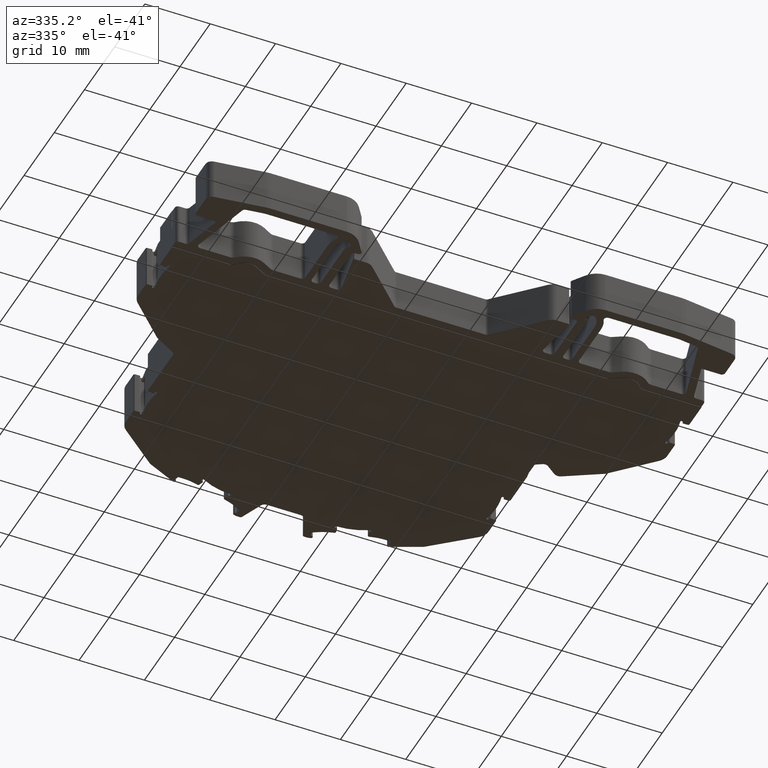
[diagram: clean part render]
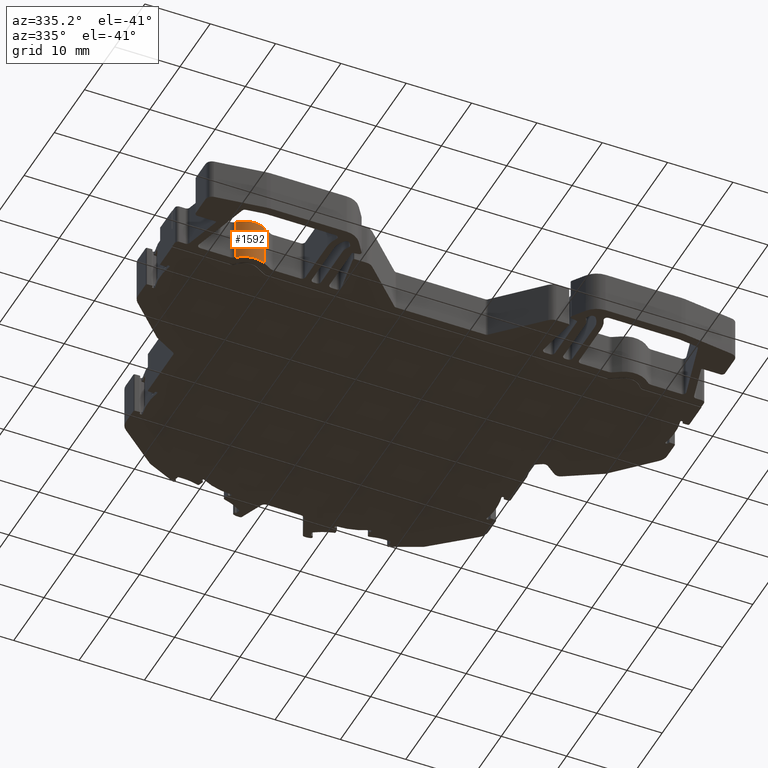
[diagram: same view with one face highlighted and labeled with its STEP entity id]
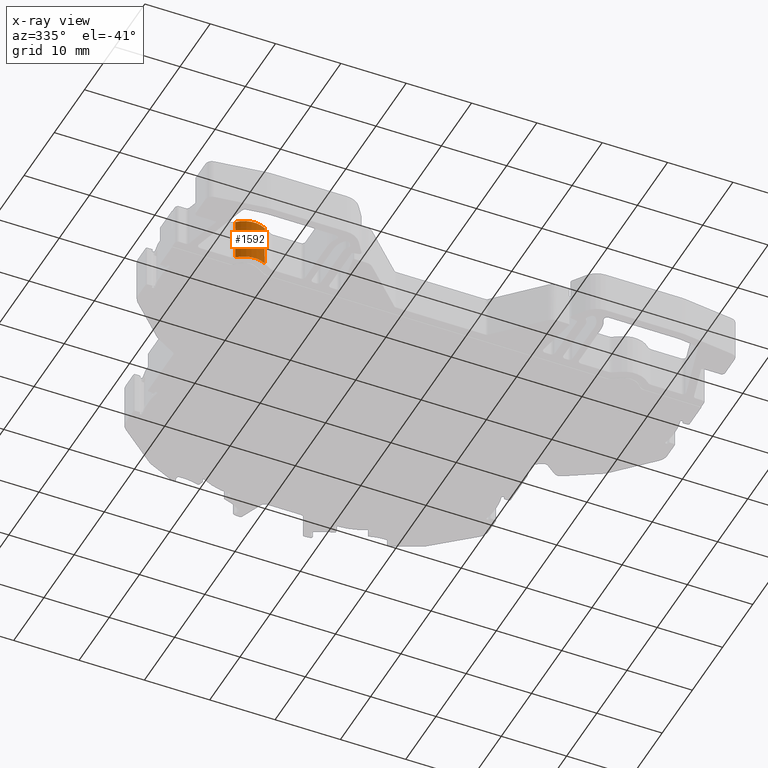
[diagram: x-ray of the same camera — body ghosted, the highlighted face saturated]
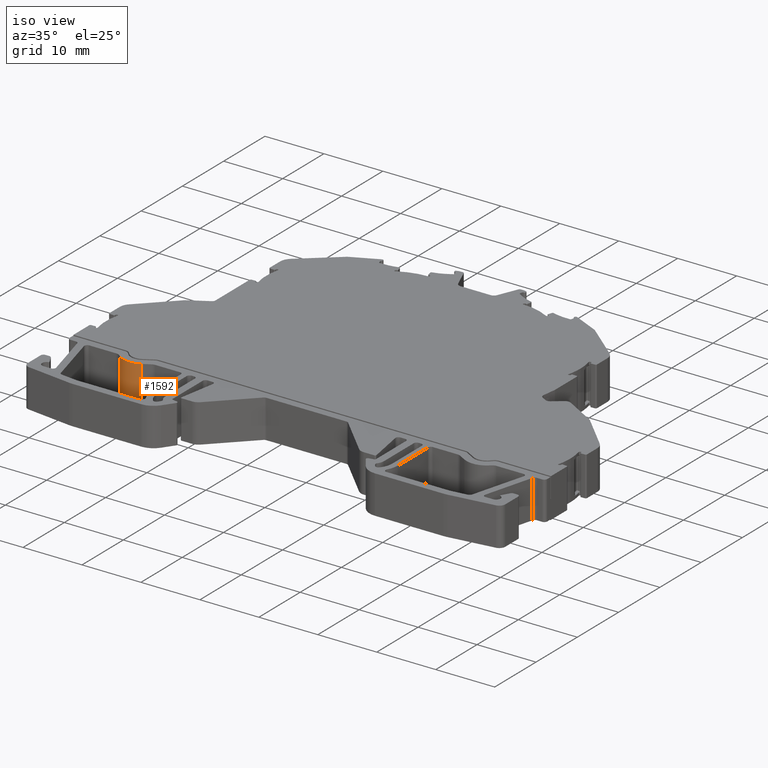
[diagram: same view with one face highlighted and labeled with its STEP entity id]
A machine part, auxiliary view. The second image highlights one B-rep face of the part: STEP entity #1592.
The next image is the same camera in x-ray: the body ghosted, the highlighted face saturated — about 0% of this face is hidden behind the body in this view.
A second angle (iso view) of the same face is appended — the face is thin or edge-on in the first view.
In plain terms, the highlighted cylindrical surface (edge-blend (fillet) strip) has radius 3.5 mm, axis along (0, 0, -1).
Its self-contained STEP definition (entity closure, byte-faithful):
#1592 = ADVANCED_FACE ( 'NONE', ( #5372 ), #5395, .T. ) ;
#2288 = EDGE_LOOP ( 'NONE', ( #29503, #25583, #25599, #25577 ) ) ;
#3976 = EDGE_CURVE ( 'NONE', #21277, #21267, #11654, .T. ) ;
#4032 = EDGE_CURVE ( 'NONE', #21290, #21205, #9435, .T. ) ;
#5369 = CARTESIAN_POINT ( 'NONE',  ( 457.1742763234730100, -342.3770457772095000, -54.50000000000000000 ) ) ;
#5372 = FACE_OUTER_BOUND ( 'NONE', #2288, .T. ) ;
#5374 = DIRECTION ( 'NONE',  ( 0.0000000000000000000, 0.0000000000000000000, -1.000000000000000000 ) ) ;
#5395 = CYLINDRICAL_SURFACE ( 'NONE', #10638, 3.500000000000003100 ) ;
#5399 = DIRECTION ( 'NONE',  ( -1.000000000000000000, 0.0000000000000000000, 0.0000000000000000000 ) ) ;
#8460 = CARTESIAN_POINT ( 'NONE',  ( 458.9242947814429400, -345.4081240336662400, -54.50000000000000000 ) ) ;
#8467 = DIRECTION ( 'NONE',  ( -0.0000000000000000000, -0.0000000000000000000, 1.000000000000000000 ) ) ;
#8509 = LINE ( 'NONE', #8460, #10267 ) ;
#8789 = CARTESIAN_POINT ( 'NONE',  ( 454.7276925563341500, -344.8798897336663500, -54.50000000000000000 ) ) ;
#8791 = DIRECTION ( 'NONE',  ( 0.0000000000000000000, 0.0000000000000000000, -1.000000000000000000 ) ) ;
#8811 = LINE ( 'NONE', #8789, #10197 ) ;
#9426 = AXIS2_PLACEMENT_3D ( 'NONE', #23739, #23761, #23786 ) ;
#9435 = CIRCLE ( 'NONE', #9426, 3.500000000000003100 ) ;
#10191 = AXIS2_PLACEMENT_3D ( 'NONE', #24522, #24525, #24600 ) ;
#10197 = VECTOR ( 'NONE', #8791, 1000.000000000000000 ) ;
#10267 = VECTOR ( 'NONE', #8467, 1000.000000000000000 ) ;
#10638 = AXIS2_PLACEMENT_3D ( 'NONE', #5369, #5374, #5399 ) ;
#11654 = CIRCLE ( 'NONE', #10191, 3.500000000000003100 ) ;
#15171 = CARTESIAN_POINT ( 'NONE',  ( 458.9242947814430500, -345.4081240336664100, -53.75000000000000000 ) ) ;
#15211 = CARTESIAN_POINT ( 'NONE',  ( 454.7276925563340300, -344.8798897336664600, -60.25000000000000700 ) ) ;
#15272 = CARTESIAN_POINT ( 'NONE',  ( 458.9242947814430500, -345.4081240336664100, -60.25000000000000700 ) ) ;
#15400 = CARTESIAN_POINT ( 'NONE',  ( 454.7276925563340300, -344.8798897336664600, -53.75000000000000000 ) ) ;
#21205 = VERTEX_POINT ( 'NONE', #15171 ) ;
#21267 = VERTEX_POINT ( 'NONE', #15272 ) ;
#21277 = VERTEX_POINT ( 'NONE', #15211 ) ;
#21290 = VERTEX_POINT ( 'NONE', #15400 ) ;
#23739 = CARTESIAN_POINT ( 'NONE',  ( 457.1742763234730100, -342.3770457772095000, -53.75000000000000000 ) ) ;
#23761 = DIRECTION ( 'NONE',  ( -0.0000000000000000000, -0.0000000000000000000, 1.000000000000000000 ) ) ;
#23786 = DIRECTION ( 'NONE',  ( -1.000000000000000000, 0.0000000000000000000, 0.0000000000000000000 ) ) ;
#24522 = CARTESIAN_POINT ( 'NONE',  ( 457.1742763234730100, -342.3770457772095000, -60.25000000000000000 ) ) ;
#24525 = DIRECTION ( 'NONE',  ( -0.0000000000000000000, -0.0000000000000000000, 1.000000000000000000 ) ) ;
#24600 = DIRECTION ( 'NONE',  ( -1.000000000000000000, 0.0000000000000000000, 0.0000000000000000000 ) ) ;
#25577 = ORIENTED_EDGE ( 'NONE', *, *, #4032, .F. ) ;
#25583 = ORIENTED_EDGE ( 'NONE', *, *, #3976, .T. ) ;
#25599 = ORIENTED_EDGE ( 'NONE', *, *, #27189, .T. ) ;
#27189 = EDGE_CURVE ( 'NONE', #21267, #21205, #8509, .T. ) ;
#27225 = EDGE_CURVE ( 'NONE', #21290, #21277, #8811, .T. ) ;
#29503 = ORIENTED_EDGE ( 'NONE', *, *, #27225, .T. ) ;